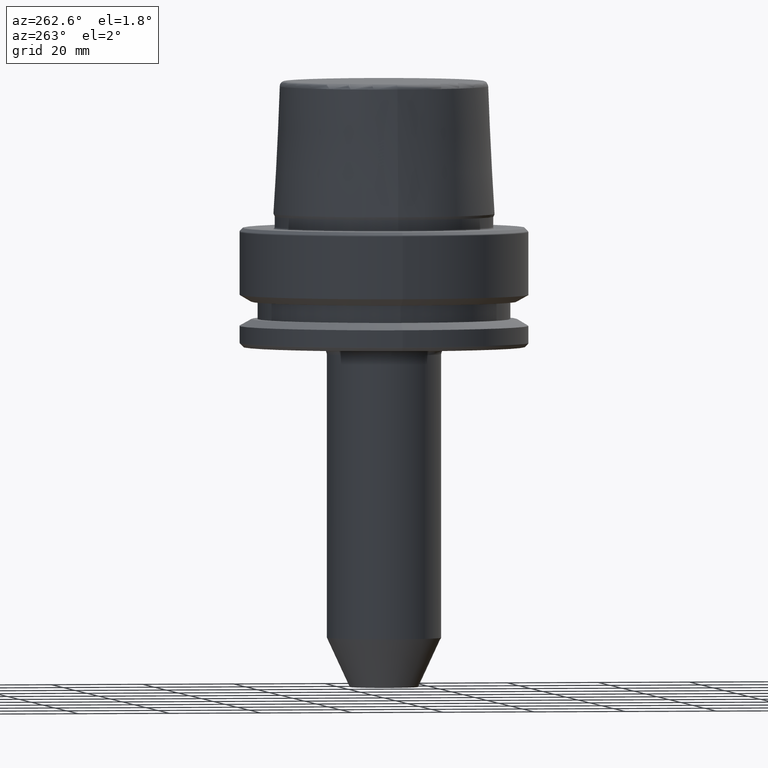
[diagram: clean part render]
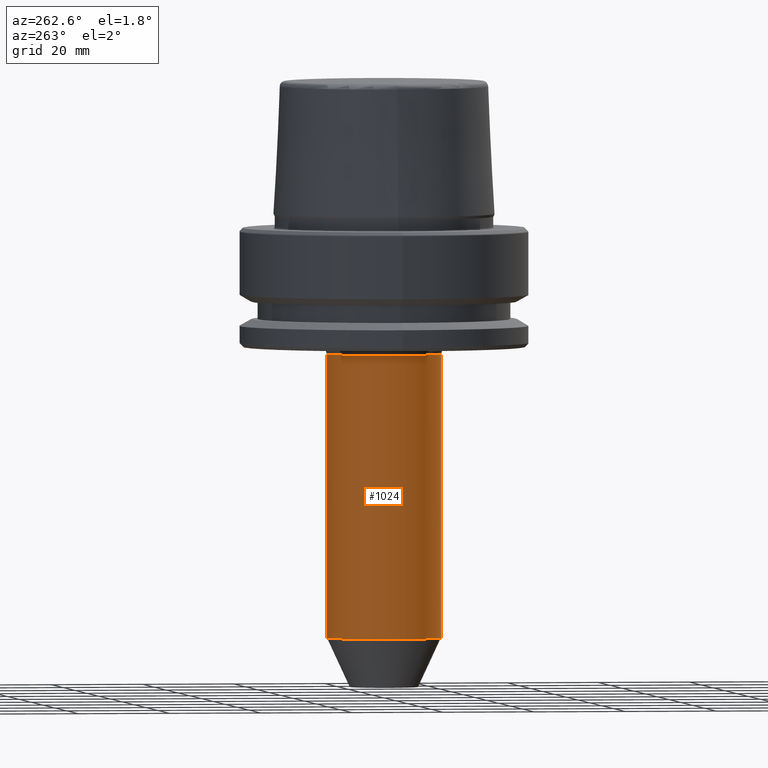
[diagram: same view with one face highlighted and labeled with its STEP entity id]
A machine part, auxiliary view. The second image highlights one B-rep face of the part: STEP entity #1024.
In plain terms, the highlighted cylindrical surface (partial cylindrical patch) has radius 12.5 mm, axis along (-0, 0, -1).
Its self-contained STEP definition (entity closure, byte-faithful):
#19 = FACE_OUTER_BOUND ( 'NONE', #1238, .T. ) ;
#25 = ORIENTED_EDGE ( 'NONE', *, *, #571, .T. ) ;
#36 = VERTEX_POINT ( 'NONE', #226 ) ;
#48 = DIRECTION ( 'NONE',  ( 1.000000000000000000, 0.0000000000000000000, 0.0000000000000000000 ) ) ;
#68 = ORIENTED_EDGE ( 'NONE', *, *, #1193, .F. ) ;
#81 = VECTOR ( 'NONE', #227, 1000.000000000000000 ) ;
#91 = DIRECTION ( 'NONE',  ( 0.0000000000000000000, 1.000000000000000000, 0.0000000000000000000 ) ) ;
#126 = DIRECTION ( 'NONE',  ( -0.0000000000000000000, 5.792248374345589000E-017, -1.000000000000000000 ) ) ;
#133 = CARTESIAN_POINT ( 'NONE',  ( 1.530808498934191300E-015, -12.49999999999999500, -100.0000000000000000 ) ) ;
#139 = DIRECTION ( 'NONE',  ( 0.0000000000000000000, 0.0000000000000000000, -1.000000000000000000 ) ) ;
#158 = VERTEX_POINT ( 'NONE', #1266 ) ;
#204 = ORIENTED_EDGE ( 'NONE', *, *, #647, .F. ) ;
#205 = CARTESIAN_POINT ( 'NONE',  ( -12.49999999999999800, 1.709540734485427200E-015, -27.50000000000001100 ) ) ;
#226 = CARTESIAN_POINT ( 'NONE',  ( 0.0000000000000000000, 12.49999999999999800, -27.50000000000001100 ) ) ;
#227 = DIRECTION ( 'NONE',  ( -0.0000000000000000000, 5.792248374345589000E-017, -1.000000000000000000 ) ) ;
#263 = VERTEX_POINT ( 'NONE', #566 ) ;
#286 = CARTESIAN_POINT ( 'NONE',  ( 0.0000000000000000000, 4.286263797015735700E-015, -100.0000000000000000 ) ) ;
#305 = EDGE_CURVE ( 'NONE', #1130, #36, #685, .T. ) ;
#315 = AXIS2_PLACEMENT_3D ( 'NONE', #1229, #644, #48 ) ;
#318 = AXIS2_PLACEMENT_3D ( 'NONE', #286, #880, #91 ) ;
#348 = CARTESIAN_POINT ( 'NONE',  ( 0.0000000000000000000, -12.49999999999999300, -89.27746539745214700 ) ) ;
#356 = VECTOR ( 'NONE', #427, 1000.000000000000000 ) ;
#369 = VERTEX_POINT ( 'NONE', #348 ) ;
#427 = DIRECTION ( 'NONE',  ( -0.0000000000000000000, 5.792248374345589000E-017, -1.000000000000000000 ) ) ;
#449 = ORIENTED_EDGE ( 'NONE', *, *, #305, .T. ) ;
#566 = CARTESIAN_POINT ( 'NONE',  ( 1.530808498934191700E-015, -12.50000000000000000, -27.50000000000001100 ) ) ;
#571 = EDGE_CURVE ( 'NONE', #36, #158, #1042, .T. ) ;
#607 = CYLINDRICAL_SURFACE ( 'NONE', #318, 12.49999999999999800 ) ;
#644 = DIRECTION ( 'NONE',  ( 0.0000000000000000000, 0.0000000000000000000, -1.000000000000000000 ) ) ;
#647 = EDGE_CURVE ( 'NONE', #263, #369, #1247, .T. ) ;
#685 = CIRCLE ( 'NONE', #743, 12.49999999999999800 ) ;
#715 = CARTESIAN_POINT ( 'NONE',  ( 0.0000000000000000000, 3.665187960811014000E-015, -89.27746539745214700 ) ) ;
#728 = EDGE_CURVE ( 'NONE', #263, #1130, #1267, .T. ) ;
#743 = AXIS2_PLACEMENT_3D ( 'NONE', #926, #139, #825 ) ;
#812 = DIRECTION ( 'NONE',  ( 0.0000000000000000000, 1.000000000000000000, 0.0000000000000000000 ) ) ;
#820 = CARTESIAN_POINT ( 'NONE',  ( 0.0000000000000000000, 12.50000000000000200, -100.0000000000000000 ) ) ;
#825 = DIRECTION ( 'NONE',  ( 1.000000000000000000, 0.0000000000000000000, 0.0000000000000000000 ) ) ;
#880 = DIRECTION ( 'NONE',  ( -0.0000000000000000000, 5.792248374345589000E-017, -1.000000000000000000 ) ) ;
#922 = AXIS2_PLACEMENT_3D ( 'NONE', #715, #126, #812 ) ;
#926 = CARTESIAN_POINT ( 'NONE',  ( 0.0000000000000000000, 8.688372561518441400E-017, -27.50000000000001100 ) ) ;
#937 = CIRCLE ( 'NONE', #922, 12.49999999999999600 ) ;
#1024 = ADVANCED_FACE ( 'NONE', ( #19 ), #607, .T. ) ;
#1042 = LINE ( 'NONE', #820, #356 ) ;
#1130 = VERTEX_POINT ( 'NONE', #205 ) ;
#1142 = ORIENTED_EDGE ( 'NONE', *, *, #728, .T. ) ;
#1193 = EDGE_CURVE ( 'NONE', #369, #158, #937, .T. ) ;
#1229 = CARTESIAN_POINT ( 'NONE',  ( 0.0000000000000000000, 8.688372561518441400E-017, -27.50000000000001100 ) ) ;
#1238 = EDGE_LOOP ( 'NONE', ( #204, #1142, #449, #25, #68 ) ) ;
#1247 = LINE ( 'NONE', #133, #81 ) ;
#1266 = CARTESIAN_POINT ( 'NONE',  ( 1.530808498934191100E-015, 12.50000000000000000, -89.27746539745214700 ) ) ;
#1267 = CIRCLE ( 'NONE', #315, 12.49999999999999800 ) ;